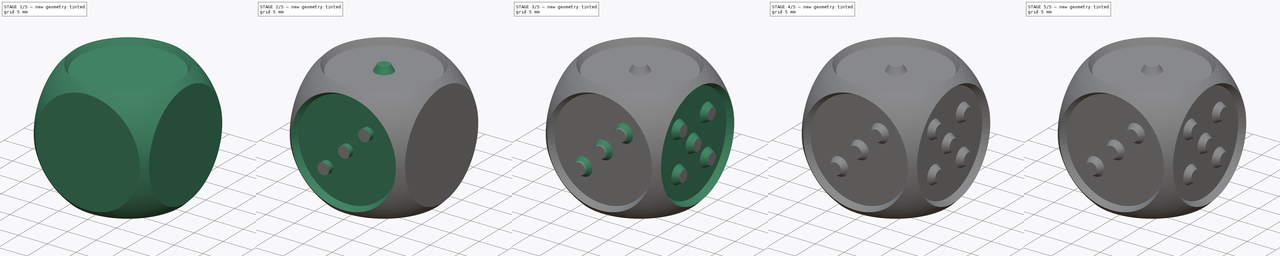
[diagram: build sequence overview — one tinted view per stage of 5, left to right]
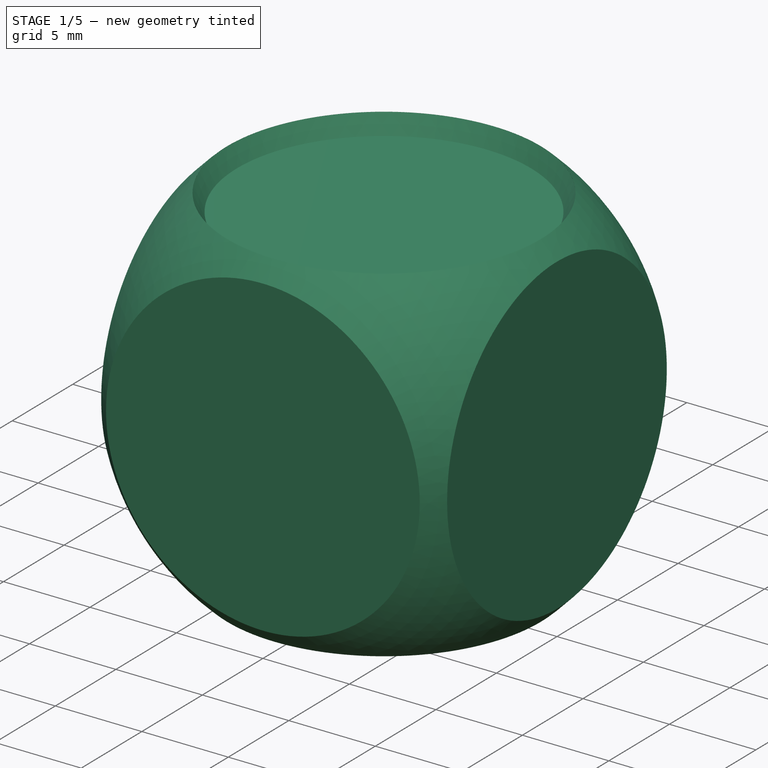
[diagram: stage 1 of 5 — iso view after this stage's code; geometry added in this stage tinted green]
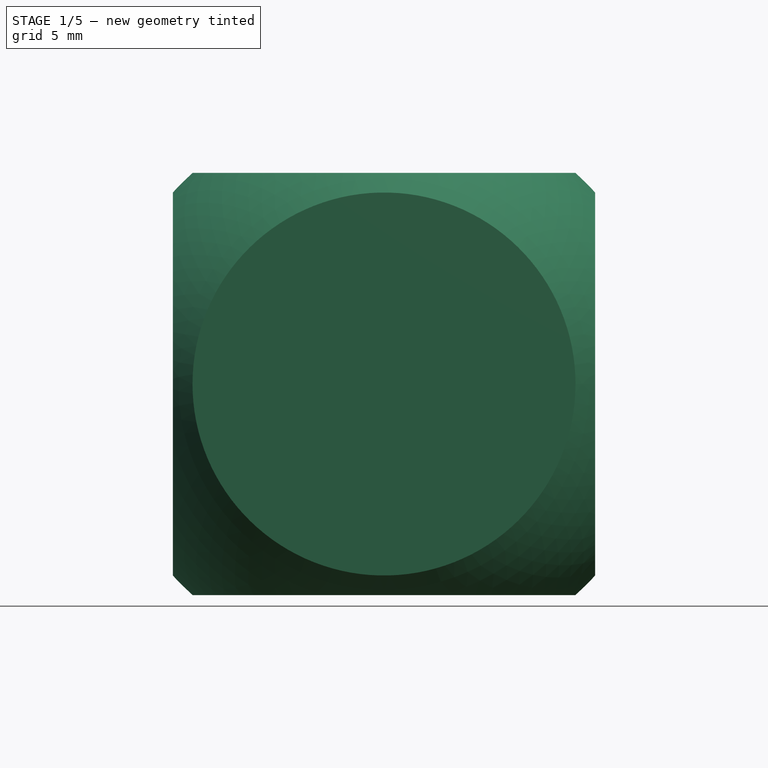
[diagram: stage 1 of 5 — front view after this stage's code; geometry added in this stage tinted green]
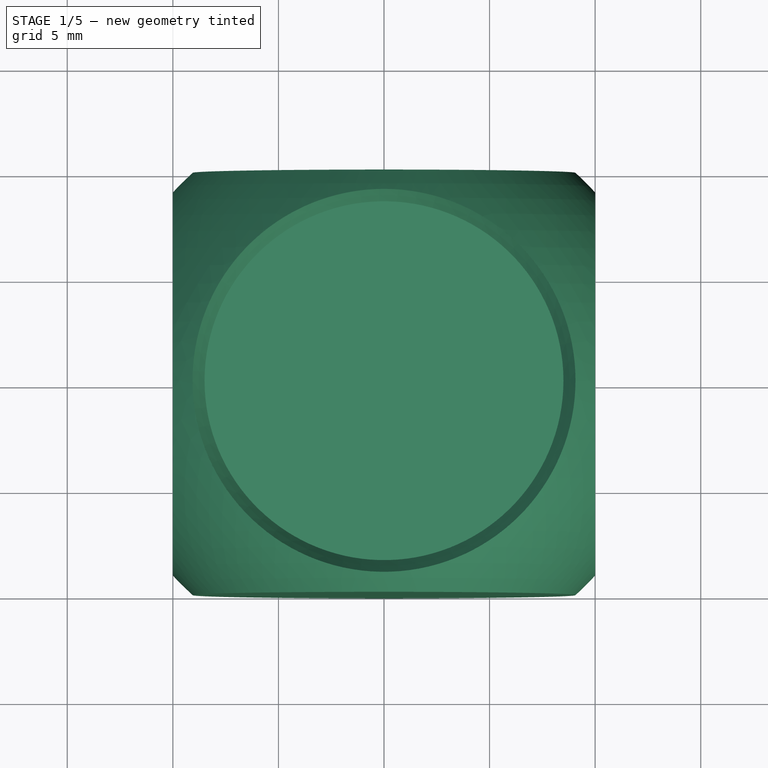
[diagram: stage 1 of 5 — top view after this stage's code; geometry added in this stage tinted green]
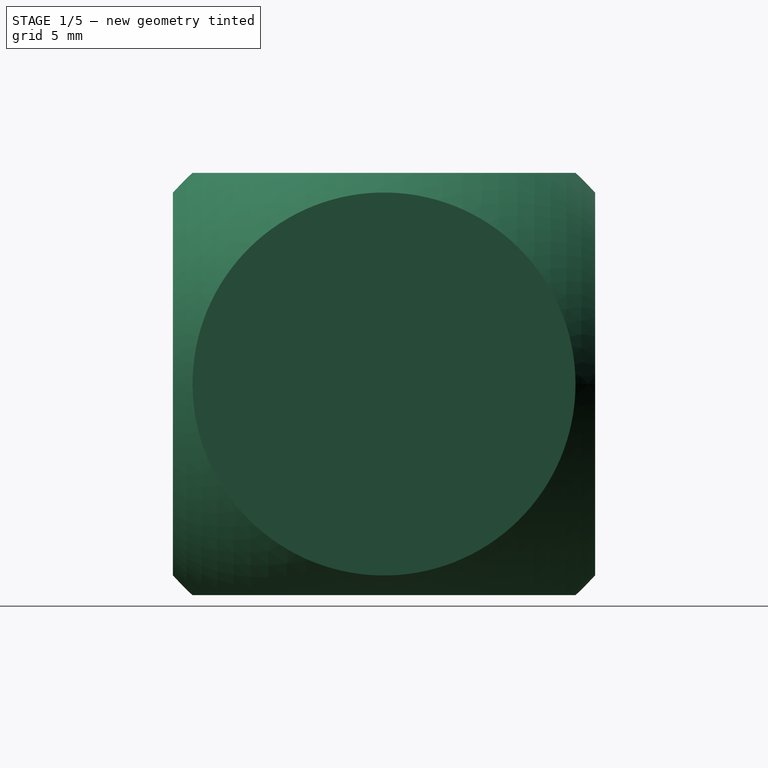
[diagram: stage 1 of 5 — right view after this stage's code; geometry added in this stage tinted green]
FCSTD DOCUMENT  (FreeCAD 0.16R6712 (Git))
Label: dice
License: All rights reserved
LicenseURL: http://en.wikipedia.org/wiki/All_rights_reserved
objects: Part::Chamfer×12, Sketcher::SketchObject×10, Part::Extrusion×8, Part::Cut×6, Part::Revolution×2, Spreadsheet::Sheet×1, Part::MultiCommon×1, Part::MultiFuse×1
note: 40 computed .brp shape members not serialized (recipe doc carries the construction recipe); baked Part::Feature solids carry a one-line shape summary decoded from their .brp

FEATURE [Spreadsheet::Sheet] Spreadsheet  label="data"
  cells = A1=radius_dice; B1(radius_dice)==27 / 2; A2=cube_side; B2(cube_side)=20; A3=slope_numbers; B3(slope_numbers)=30; A4=depth_numbers; B4(depth_numbers)=1.5; A5=radius_numbers; B5(radius_number)=1
FEATURE [Sketcher::SketchObject] Sketch001
  expr: Constraints[13] = data.cube_side
  sketch-geometry (5):
    g0: LineSegment StartX=10 StartY=10 StartZ=0 EndX=-10 EndY=10 EndZ=0
    g1: LineSegment StartX=-10 StartY=10 StartZ=0 EndX=-10 EndY=-10 EndZ=0
    g2: LineSegment StartX=-10 StartY=-10 StartZ=0 EndX=10 EndY=-10 EndZ=0
    g3: LineSegment StartX=10 StartY=-10 StartZ=0 EndX=10 EndY=10 EndZ=0
    g4: Circle [constr] CenterX=0 CenterY=0 CenterZ=0 NormalX=0 NormalY=0 NormalZ=1 Radius=14.1421
  constraints (14):
    c: Coincident(g0,g1)
    c: Coincident(g1,g2)
    c: Coincident(g2,g3)
    c: Coincident(g3,g0)
    c: Equal(g0,g1)
    c: Equal(g0,g2)
    c: Equal(g0,g3)
    c: PointOnObject(g0,g4)
    c: PointOnObject(g1,g4)
    c: PointOnObject(g2,g4)
    c: PointOnObject(g3,g4)
    c: Coincident(g4,g-1)
    c: Horizontal(g0)
    c: DistanceX(g0,g0) = 20
FEATURE [Part::Extrusion] Extrude003
  Base = -> Sketch001
  Dir = (0,0,20)
  Solid = true
FEATURE [Sketcher::SketchObject] Sketch
  expr: Constraints[3] = data.radius_dice
  sketch-geometry (2):
    g0: ArcOfCircle CenterX=0 CenterY=0 CenterZ=0 NormalX=0 NormalY=0 NormalZ=1 Radius=13.5 StartAngle=4.71239 EndAngle=7.85398
    g1: LineSegment StartX=7e-12 StartY=13.5 StartZ=0 EndX=4e-12 EndY=-13.5 EndZ=0
  constraints (6):
    c: Coincident(g0,g-1)
    c: PointOnObject(g0,g-2)
    c: PointOnObject(g0,g-2)
    c: Radius(g0) = 13.5
    c: Coincident(g1,g0)
    c: Coincident(g1,g0)
FEATURE [Part::Revolution] Revolve
  Angle = 360
  Axis = (0,1,0)
  Base = (0,0,0)
  Placement = pos=(0,0,10) rot=(0,0,1;0rad)
  Solid = true
  Source = -> Sketch
FEATURE [Part::MultiCommon] Common
  Shapes = -> [Revolve,Extrude003]
FEATURE [Sketcher::SketchObject] Sketch002
  ExternalGeometry = -> [Common]
  Placement = pos=(0,0,20) rot=(0,0,1;0rad)
  Support = -> Common [Face5]
  sketch-geometry (1):
    g0: Circle CenterX=0 CenterY=0 CenterZ=0 NormalX=0 NormalY=0 NormalZ=1 Radius=9.06918
  constraints (2):
    c: Coincident(g0,g-1)
    c: Tangent(g0,g-3)
FEATURE [Part::Extrusion] Extrude
  Base = -> Sketch002
  Dir = (0,0,-1)
  Solid = true
FEATURE [Part::Cut] Cut
  Base = -> Common
  Tool = -> Extrude
FEATURE [Part::Chamfer] Chamfer
  Base = -> Cut
  Edges = 1 edges: [Edge12 r1=0.99 r2=0.57]
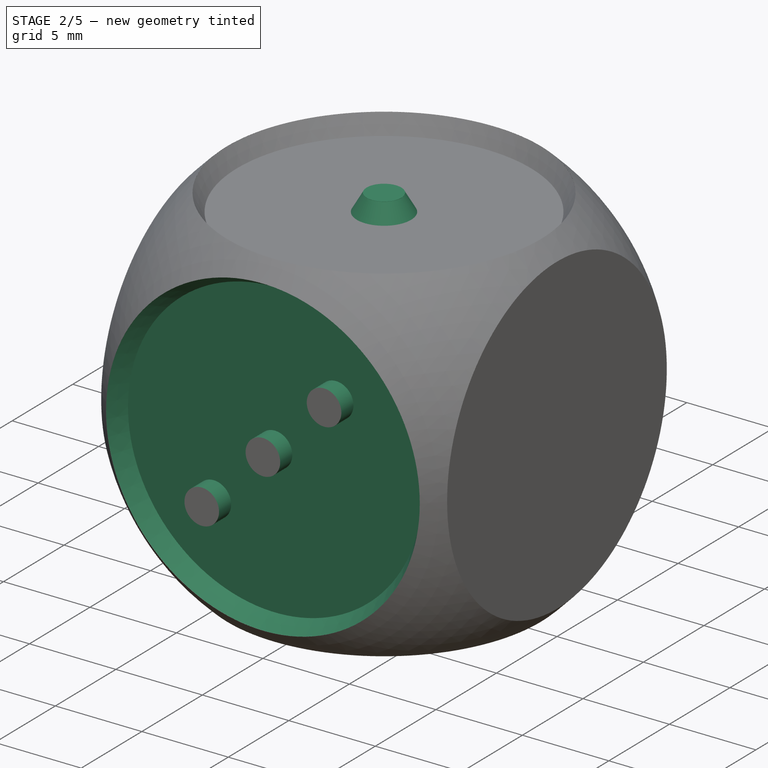
[diagram: stage 2 of 5 — iso view after this stage's code; geometry added in this stage tinted green]
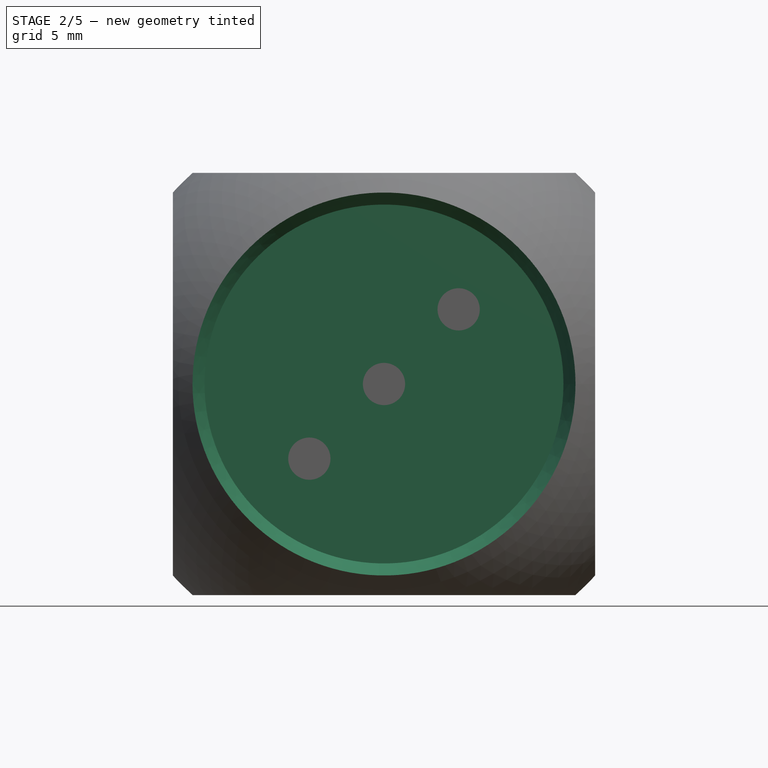
[diagram: stage 2 of 5 — front view after this stage's code; geometry added in this stage tinted green]
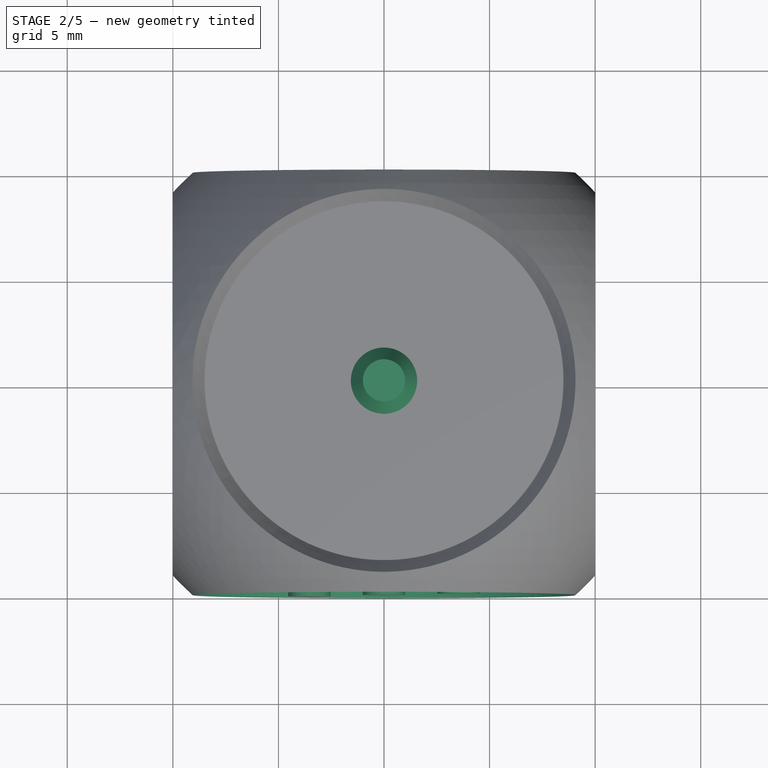
[diagram: stage 2 of 5 — top view after this stage's code; geometry added in this stage tinted green]
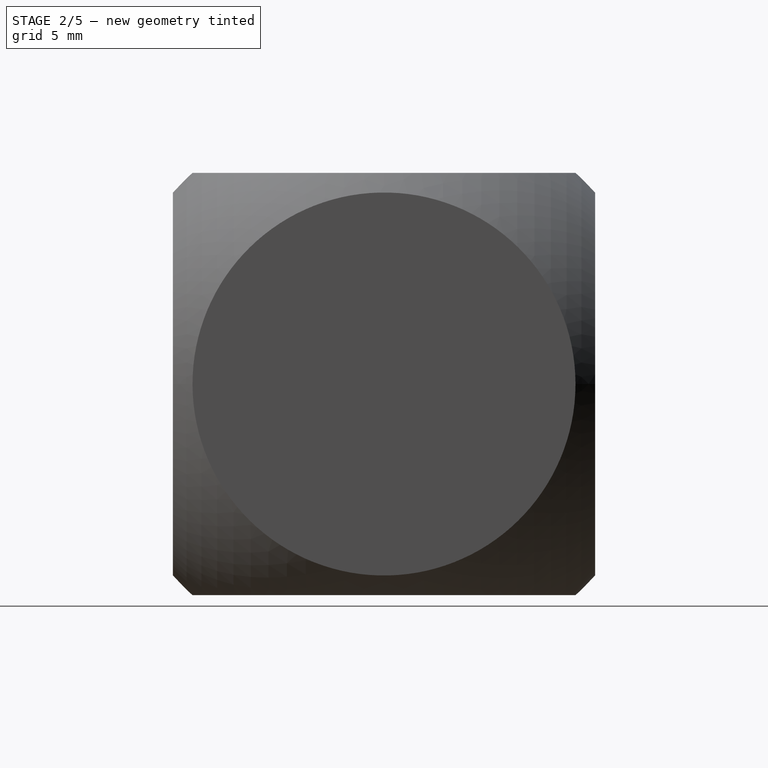
[diagram: stage 2 of 5 — right view after this stage's code; geometry added in this stage tinted green]
FEATURE [Sketcher::SketchObject] Sketch003
  Placement = pos=(0,0,19) rot=(0,0,1;0rad)
  Support = -> Chamfer [Face4]
  sketch-geometry (1):
    g0: Circle CenterX=0 CenterY=0 CenterZ=0 NormalX=0 NormalY=0 NormalZ=1 Radius=1
  constraints (2):
    c: Coincident(g0,g-1)
    c: Radius(g0) = 1
FEATURE [Part::Extrusion] Extrude004
  Base = -> Sketch003
  Dir = (0,0,1)
  Solid = true
FEATURE [Part::MultiFuse] Fusion
  Shapes = -> [Chamfer,Extrude004]
FEATURE [Part::Chamfer] Chamfer001
  Base = -> Fusion
  Edges = 1 edges: [Edge2 r1=0.99 r2=0.57]
FEATURE [Sketcher::SketchObject] Sketch004
  ExternalGeometry = -> [Chamfer001]
  Placement = pos=(0,-10,0) rot=(1,0,0;1.5708rad)
  Support = -> Chamfer001 [Face10]
  sketch-geometry (7):
    g0: Circle CenterX=0 CenterY=10 CenterZ=0 NormalX=0 NormalY=0 NormalZ=1 Radius=1
    g1: LineSegment [constr] StartX=0 StartY=10 StartZ=0 EndX=3.53553 EndY=13.5355 EndZ=0
    g2: LineSegment [constr] StartX=0 StartY=10 StartZ=0 EndX=5.44929 EndY=10 EndZ=0
    g3: LineSegment [constr] StartX=0 StartY=10 StartZ=0 EndX=-3.53553 EndY=6.46447 EndZ=0
    g4: Circle CenterX=3.53553 CenterY=13.5355 CenterZ=0 NormalX=0 NormalY=0 NormalZ=1 Radius=1
    g5: Circle CenterX=-3.53553 CenterY=6.46447 CenterZ=0 NormalX=0 NormalY=0 NormalZ=1 Radius=1
    g6: Circle CenterX=0 CenterY=10 CenterZ=0 NormalX=0 NormalY=0 NormalZ=1 Radius=9.06918
  constraints (17):
    c: PointOnObject(g0,g-2)
    c: Radius(g0) = 1
    c: Coincident(g0,g-3)
    c: Horizontal(g2)
    c: Coincident(g0,g1)
    c: Coincident(g0,g2)
    c: Angle(g2,g1) = 0.785398
    c: Coincident(g3,g0)
    c: Parallel(g3,g1)
    c: Radius(g5) = 1
    c: Radius(g4) = 1
    c: Coincident(g3,g5)
    c: Coincident(g1,g4)
    c: Distance(g3) = 5
    c: Distance(g1) = 5
    c: Coincident(g6,g0)
    c: Equal(g6,g-3)
FEATURE [Part::Extrusion] Extrude005
  Base = -> Sketch004
  Dir = (0,1,0)
  Solid = true
FEATURE [Part::Cut] Cut001
  Base = -> Chamfer001
  Tool = -> Extrude005
FEATURE [Part::Chamfer] Chamfer002
  Base = -> Cut001
  Edges = 1 edges: [Edge21 r1=0.99 r2=0.57]
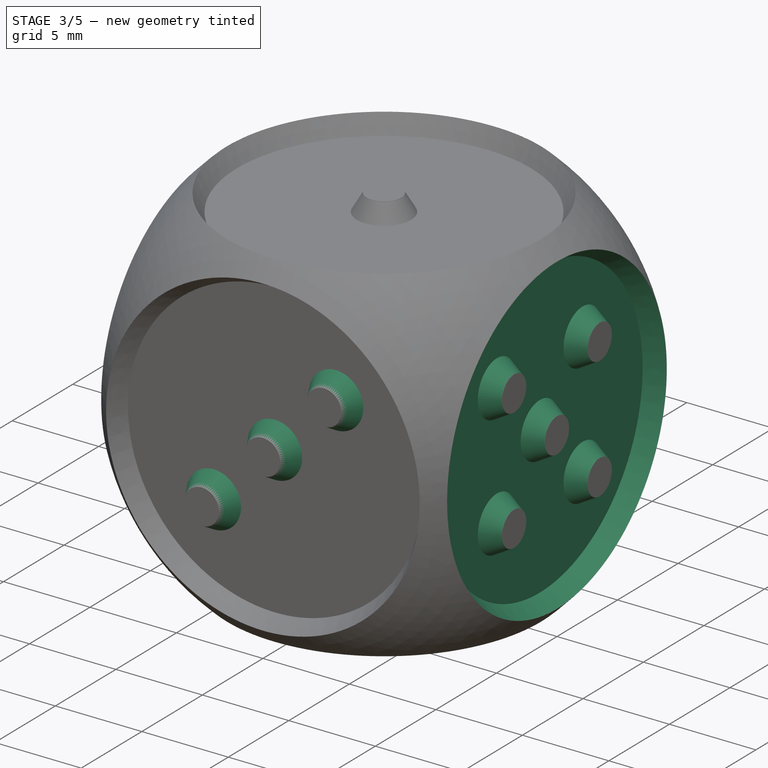
[diagram: stage 3 of 5 — iso view after this stage's code; geometry added in this stage tinted green]
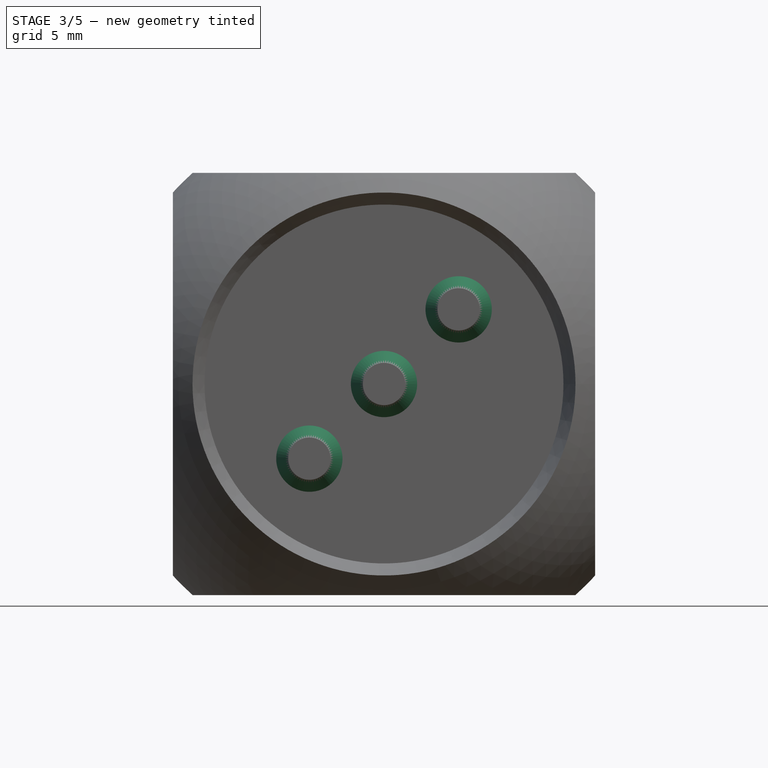
[diagram: stage 3 of 5 — front view after this stage's code; geometry added in this stage tinted green]
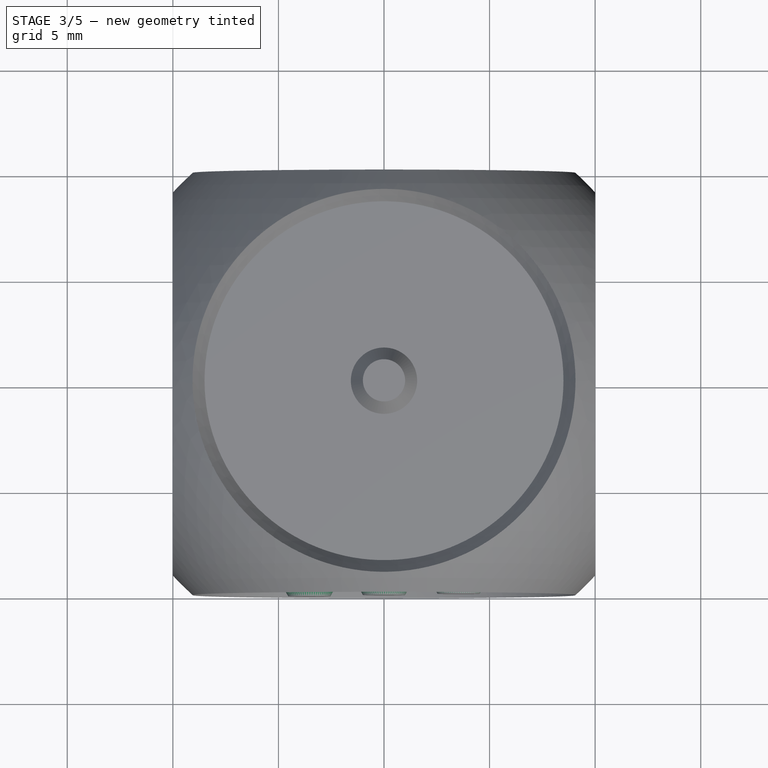
[diagram: stage 3 of 5 — top view after this stage's code; geometry added in this stage tinted green]
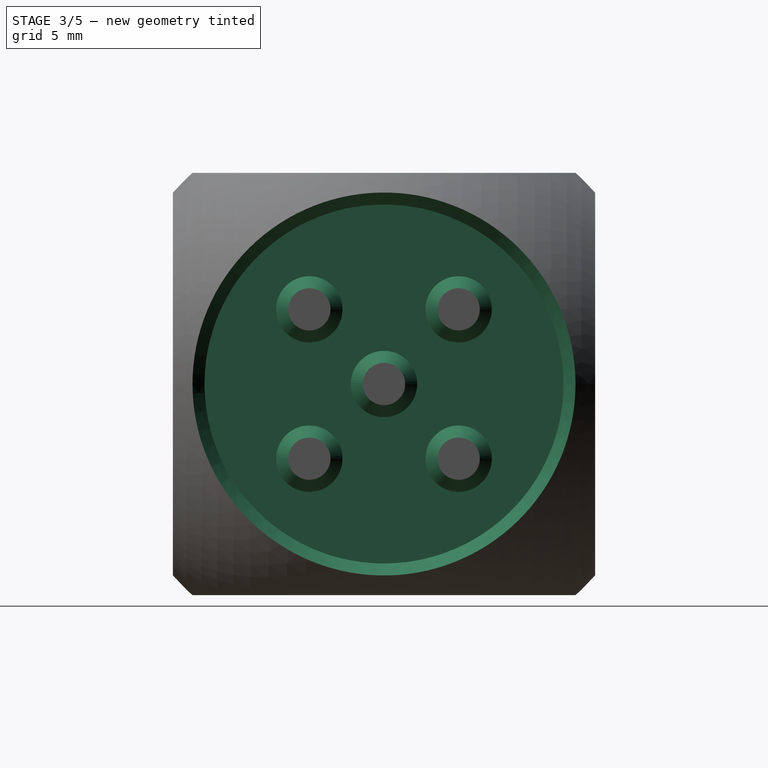
[diagram: stage 3 of 5 — right view after this stage's code; geometry added in this stage tinted green]
FEATURE [Part::Chamfer] Chamfer003
  Base = -> Chamfer002
  Edges = 3 edges: [Edge15 r1=0.57 r2=0.99,Edge16 r1=0.57 r2=0.99,Edge17 r1=0.57 r2=0.99]
FEATURE [Sketcher::SketchObject] Sketch005
  ExternalGeometry = -> [Chamfer003]
  Placement = pos=(10,0,0) rot=(0.57735,0.57735,0.57735;2.0944rad)
  Support = -> Chamfer003 [Face14]
  sketch-geometry (11):
    g0: Circle CenterX=0 CenterY=10 CenterZ=0 NormalX=0 NormalY=0 NormalZ=1 Radius=9.06918
    g1: Circle CenterX=0 CenterY=10 CenterZ=0 NormalX=0 NormalY=0 NormalZ=1 Radius=1
    g2: LineSegment [constr] StartX=0 StartY=10 StartZ=0 EndX=2.91237 EndY=10 EndZ=0
    g3: LineSegment [constr] StartX=0 StartY=10 StartZ=0 EndX=3.53553 EndY=13.5355 EndZ=0
    g4: LineSegment [constr] StartX=0 StartY=10 StartZ=0 EndX=-3.53553 EndY=6.46447 EndZ=0
    g5: LineSegment [constr] StartX=0 StartY=10 StartZ=0 EndX=-3.53553 EndY=13.5355 EndZ=0
    g6: LineSegment [constr] StartX=0 StartY=10 StartZ=0 EndX=3.53553 EndY=6.46447 EndZ=0
    g7: Circle CenterX=-3.53553 CenterY=6.46447 CenterZ=0 NormalX=0 NormalY=0 NormalZ=1 Radius=1
    g8: Circle CenterX=-3.53553 CenterY=13.5355 CenterZ=0 NormalX=0 NormalY=0 NormalZ=1 Radius=1
    g9: Circle CenterX=3.53553 CenterY=13.5355 CenterZ=0 NormalX=0 NormalY=0 NormalZ=1 Radius=1
    g10: Circle CenterX=3.53553 CenterY=6.46447 CenterZ=0 NormalX=0 NormalY=0 NormalZ=1 Radius=1
  constraints (26):
    c: Coincident(g0,g-3)
    c: Tangent(g-3,g0) = -1.5708
    c: Radius(g1) = 1
    c: Coincident(g0,g1)
    c: Horizontal(g2)
    c: Coincident(g0,g2)
    c: Coincident(g0,g3)
    c: Coincident(g0,g5)
    c: Coincident(g0,g4)
    c: Coincident(g0,g6)
    c: Angle(g2,g3) = 0.785398
    c: Angle(g2,g5) = 2.35619
    c: Angle(g6,g2) = 0.785398
    c: Angle(g4,g2) = 2.35619
    c: Distance(g5) = 5
    c: Distance(g3) = 5
    c: Distance(g4) = 5
    c: Distance(g6) = 5
    c: Radius(g10) = 1
    c: Equal(g10,g9)
    c: Equal(g10,g8)
    c: Equal(g10,g7)
    c: Coincident(g5,g8)
    c: Coincident(g3,g9)
    c: Coincident(g6,g10)
    c: Coincident(g4,g7)
FEATURE [Part::Extrusion] Extrude006
  Base = -> Sketch005
  Dir = (-1,0,0)
  Solid = true
FEATURE [Part::Cut] Cut002
  Base = -> Chamfer003
  Tool = -> Extrude006
FEATURE [Part::Chamfer] Chamfer004
  Base = -> Cut002
  Edges = 1 edges: [Edge31 r1=0.99 r2=0.57]
FEATURE [Part::Chamfer] Chamfer005
  Base = -> Chamfer004
  Edges = 5 edges: [Edge15 r1=0.57 r2=0.99,Edge16 r1=0.57 r2=0.99,Edge17 r1=0.57 r2=0.99,Edge18 r1=0.57 r2=0.99,Edge19 r1=0.57 r2=0.99]
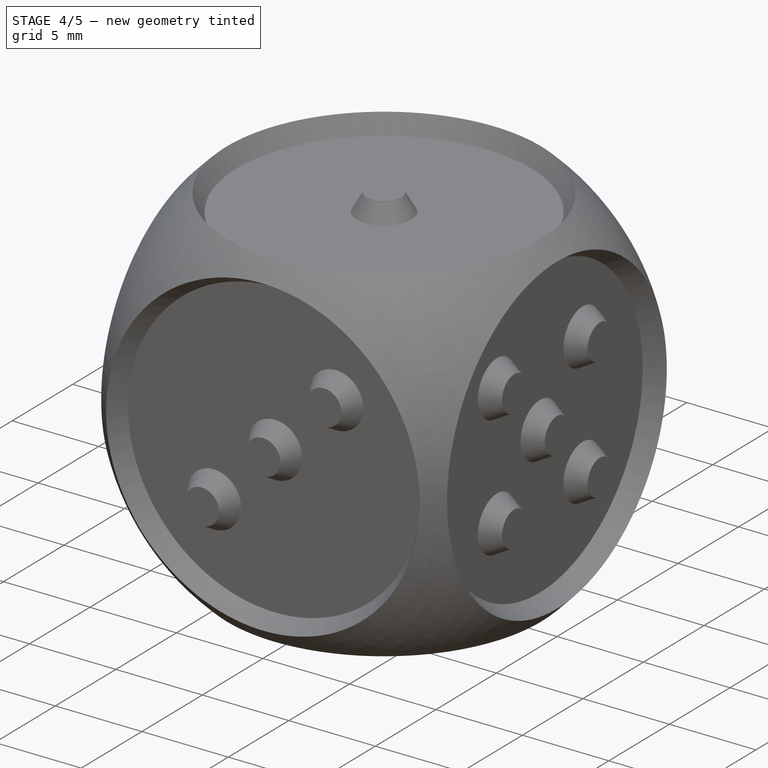
[diagram: stage 4 of 5 — iso view after this stage's code; geometry added in this stage tinted green]
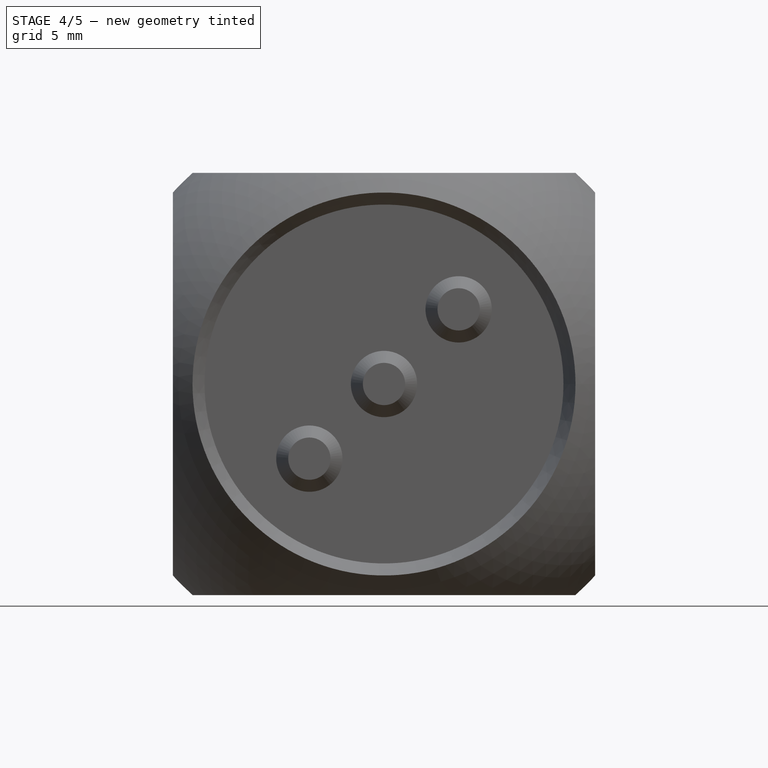
[diagram: stage 4 of 5 — front view after this stage's code; geometry added in this stage tinted green]
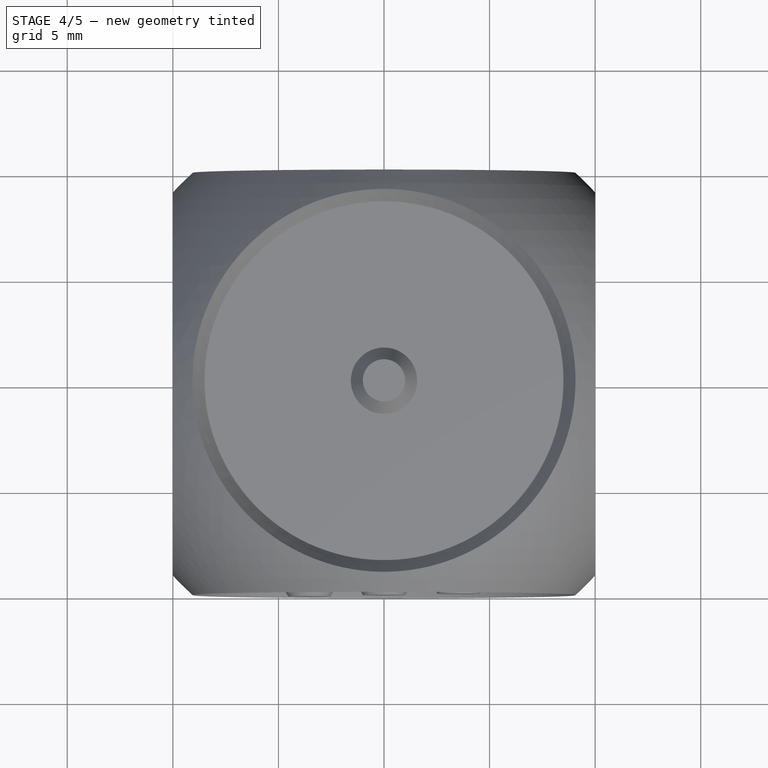
[diagram: stage 4 of 5 — top view after this stage's code; geometry added in this stage tinted green]
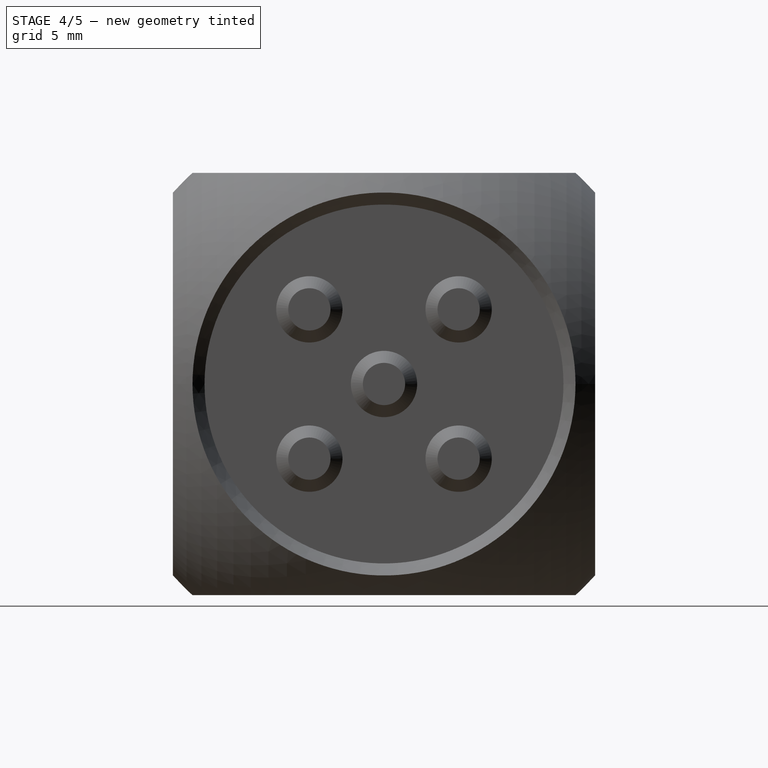
[diagram: stage 4 of 5 — right view after this stage's code; geometry added in this stage tinted green]
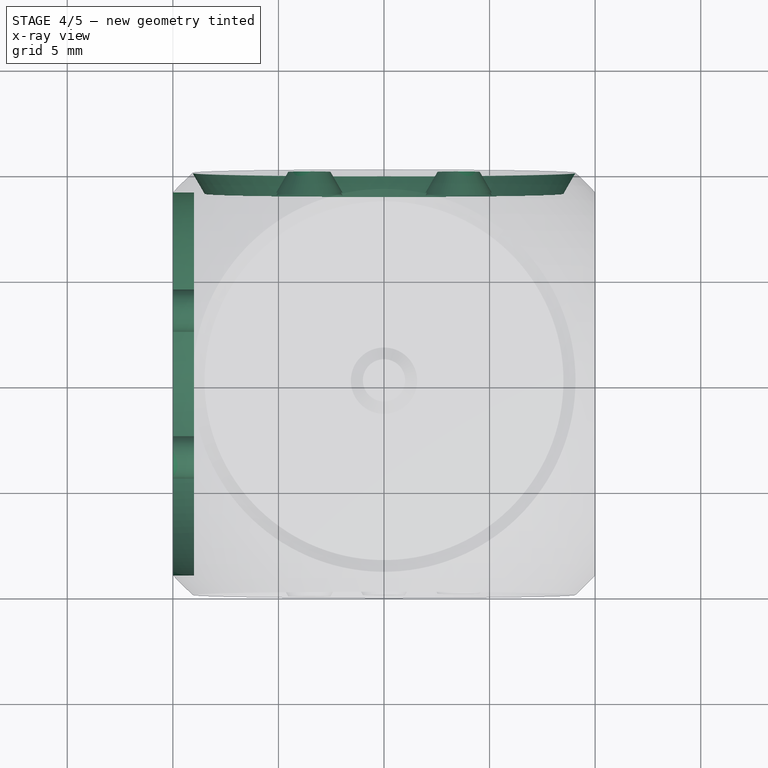
[diagram: stage 4 of 5 — x-ray composite at the top view; earlier geometry ghosted, this stage's added geometry solid]
FEATURE [Sketcher::SketchObject] Sketch006
  ExternalGeometry = -> [Chamfer005]
  Placement = pos=(0,10,0) rot=(0,0.707107,0.707107;3.14159rad)
  Support = -> Chamfer005 [Face20]
  sketch-geometry (10):
    g0: Circle CenterX=0 CenterY=10 CenterZ=0 NormalX=0 NormalY=0 NormalZ=1 Radius=9.06918
    g1: LineSegment [constr] StartX=0 StartY=10 StartZ=0 EndX=3.53553 EndY=13.5355 EndZ=0
    g2: LineSegment [constr] StartX=0 StartY=10 StartZ=0 EndX=4.89545 EndY=10 EndZ=0
    g3: LineSegment [constr] StartX=0 StartY=10 StartZ=0 EndX=-3.53553 EndY=13.5355 EndZ=0
    g4: LineSegment [constr] StartX=0 StartY=10 StartZ=0 EndX=-3.53553 EndY=6.46447 EndZ=0
    g5: LineSegment [constr] StartX=0 StartY=10 StartZ=0 EndX=3.53553 EndY=6.46447 EndZ=0
    g6: Circle CenterX=-3.53553 CenterY=13.5355 CenterZ=0 NormalX=0 NormalY=0 NormalZ=1 Radius=1
    g7: Circle CenterX=3.53553 CenterY=13.5355 CenterZ=0 NormalX=0 NormalY=0 NormalZ=1 Radius=1
    g8: Circle CenterX=3.53553 CenterY=6.46447 CenterZ=0 NormalX=0 NormalY=0 NormalZ=1 Radius=1
    g9: Circle CenterX=-3.53553 CenterY=6.46447 CenterZ=0 NormalX=0 NormalY=0 NormalZ=1 Radius=1
  constraints (24):
    c: Coincident(g0,g-3)
    c: Equal(g0,g-3)
    c: Horizontal(g2)
    c: Coincident(g0,g1)
    c: Coincident(g0,g2)
    c: Coincident(g0,g3)
    c: Coincident(g0,g4)
    c: Coincident(g0,g5)
    c: Angle(g2,g1) = 0.785398
    c: Angle(g2,g3) = 2.35619
    c: Angle(g5,g2) = 0.785398
    c: Angle(g4,g2) = 2.35619
    c: Distance(g3) = 5
    c: Distance(g1) = 5
    c: Distance(g5) = 5
    c: Distance(g4) = 5
    c: Radius(g6) = 1
    c: Equal(g6,g7)
    c: Equal(g6,g8)
    c: Equal(g6,g9)
    c: Coincident(g3,g6)
    c: Coincident(g1,g7)
    c: Coincident(g5,g8)
    c: Coincident(g4,g9)
FEATURE [Part::Extrusion] Extrude007
  Base = -> Sketch006
  Dir = (0,-1,0)
  Solid = true
FEATURE [Part::Cut] Cut003
  Base = -> Chamfer005
  Tool = -> Extrude007
FEATURE [Part::Chamfer] Chamfer006
  Base = -> Cut003
  Edges = 1 edges: [Edge44 r1=0.99 r2=0.57]
FEATURE [Part::Chamfer] Chamfer007
  Base = -> Chamfer006
  Edges = 4 edges: [Edge16 r1=0.57 r2=0.99,Edge17 r1=0.57 r2=0.99,Edge18 r1=0.57 r2=0.99,Edge19 r1=0.57 r2=0.99]
FEATURE [Sketcher::SketchObject] Sketch007
  ExternalGeometry = -> [Chamfer007]
  Placement = pos=(-10,0,0) rot=(0.57735,-0.57735,-0.57735;2.0944rad)
  Support = -> Chamfer007 [Face20]
  sketch-geometry (6):
    g0: Circle CenterX=0 CenterY=10 CenterZ=0 NormalX=0 NormalY=0 NormalZ=1 Radius=9.06918
    g1: LineSegment [constr] StartX=0 StartY=10 StartZ=0 EndX=4.0038 EndY=10 EndZ=0
    g2: LineSegment [constr] StartX=0 StartY=10 StartZ=0 EndX=3.53553 EndY=13.5355 EndZ=0
    g3: LineSegment [constr] StartX=0 StartY=10 StartZ=0 EndX=-3.53553 EndY=6.46447 EndZ=0
    g4: Circle CenterX=3.53553 CenterY=13.5355 CenterZ=0 NormalX=0 NormalY=0 NormalZ=1 Radius=1
    g5: Circle CenterX=-3.53553 CenterY=6.46447 CenterZ=0 NormalX=0 NormalY=0 NormalZ=1 Radius=1
  constraints (14):
    c: Coincident(g0,g-3)
    c: Equal(g0,g-3)
    c: Horizontal(g1)
    c: Coincident(g0,g1)
    c: Coincident(g0,g2)
    c: Coincident(g0,g3)
    c: Angle(g1,g2) = 0.785398
    c: Angle(g3,g1) = 2.35619
    c: Distance(g2) = 5
    c: Distance(g3) = 5
    c: Coincident(g4,g2)
    c: Coincident(g3,g5)
    c: Radius(g4) = 1
    c: Equal(g4,g5)
FEATURE [Part::Extrusion] Extrude008
  Base = -> Sketch007
  Dir = (1,0,0)
  Solid = true
FEATURE [Part::Cut] Cut004
  Base = -> Chamfer007
  Tool = -> Extrude008
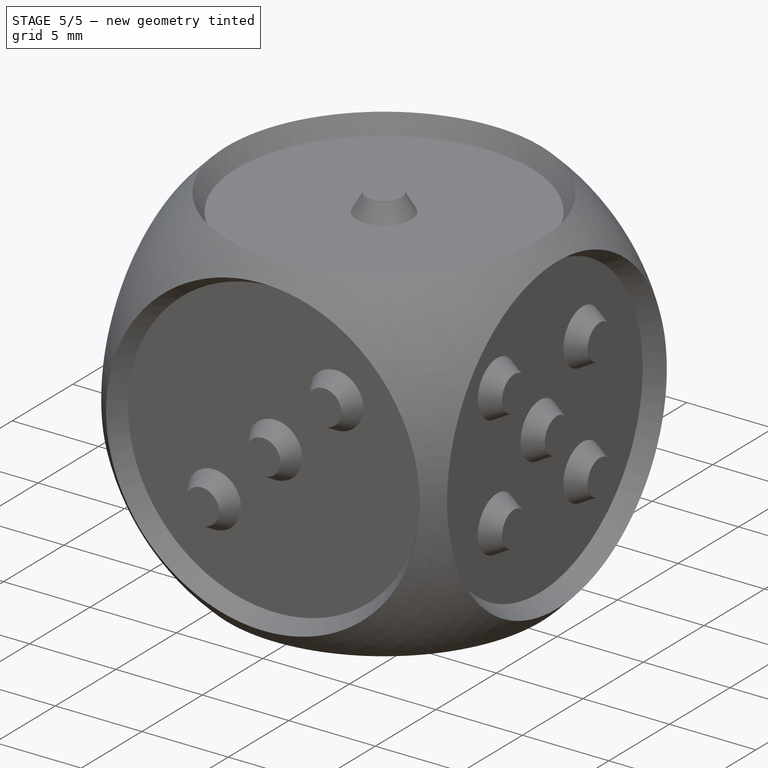
[diagram: stage 5 of 5 — iso view after this stage's code; geometry added in this stage tinted green]
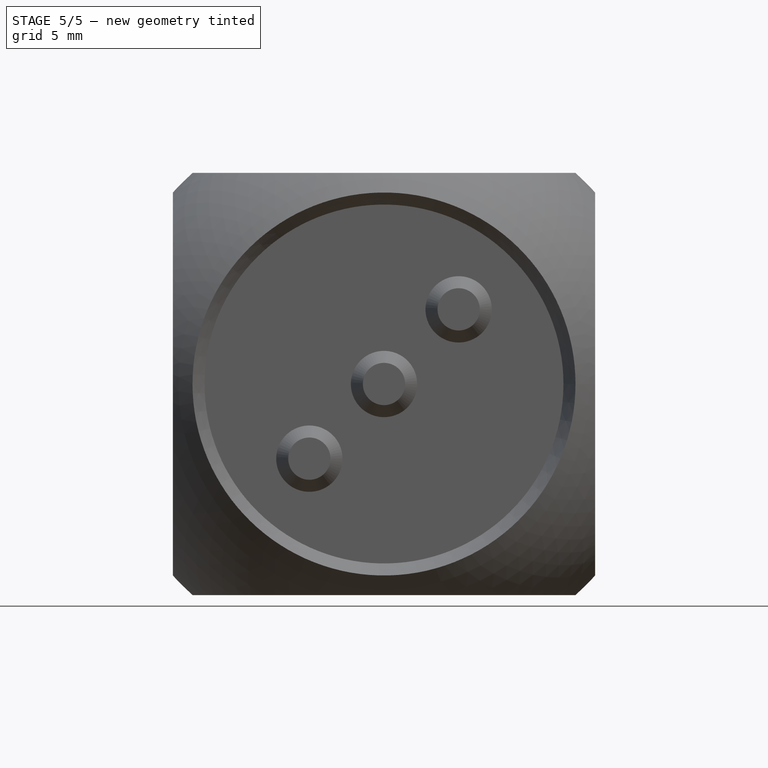
[diagram: stage 5 of 5 — front view after this stage's code; geometry added in this stage tinted green]
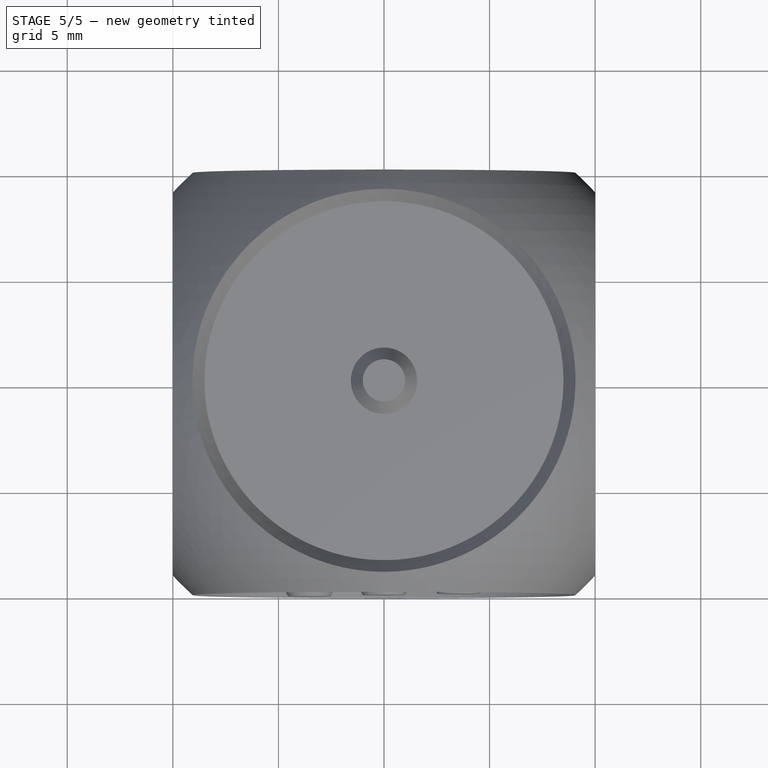
[diagram: stage 5 of 5 — top view after this stage's code; geometry added in this stage tinted green]
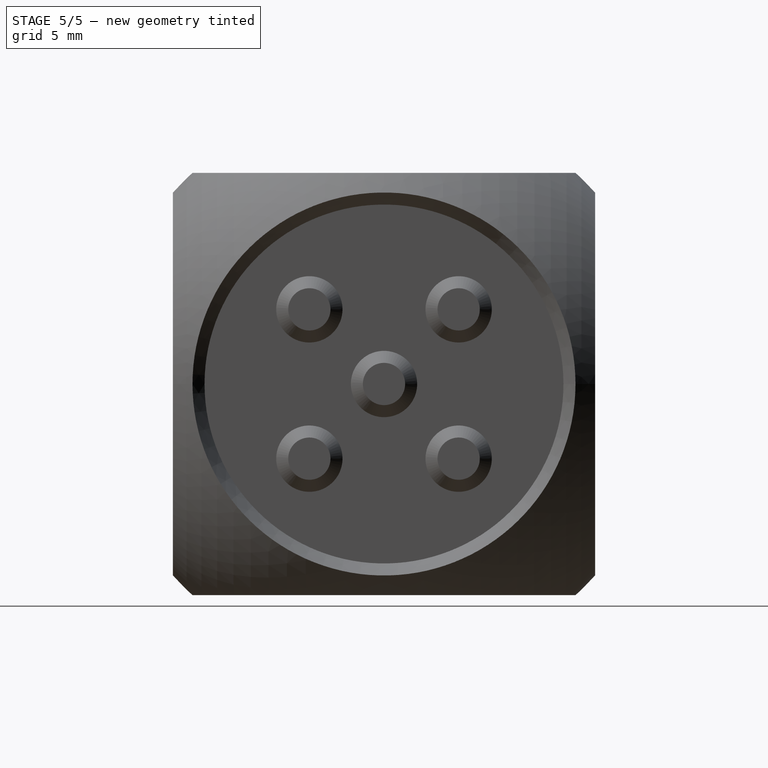
[diagram: stage 5 of 5 — right view after this stage's code; geometry added in this stage tinted green]
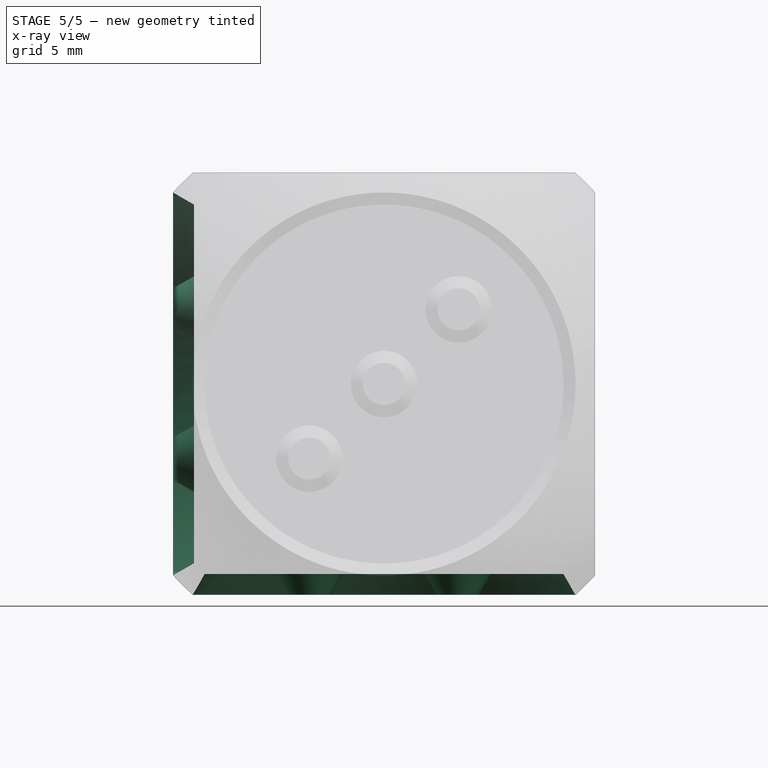
[diagram: stage 5 of 5 — x-ray composite at the front view; earlier geometry ghosted, this stage's added geometry solid]
FEATURE [Part::Chamfer] Chamfer008
  Base = -> Cut004
  Edges = 1 edges: [Edge42 r1=0.99 r2=0.57]
FEATURE [Part::Chamfer] Chamfer009
  Base = -> Chamfer008
  Edges = 2 edges: [Edge17 r1=0.57 r2=0.99,Edge18 r1=0.57 r2=0.99]
FEATURE [Sketcher::SketchObject] Sketch008
  ExternalGeometry = -> [Chamfer009]
  Placement = pos=(0,0,0) rot=(1,0,0;3.14159rad)
  Support = -> Chamfer009 [Face15]
  sketch-geometry (17):
    g0: LineSegment [constr] StartX=0 StartY=0 StartZ=0 EndX=3.5 EndY=0 EndZ=0
    g1: LineSegment [constr] StartX=0 StartY=0 StartZ=0 EndX=3.5 EndY=5 EndZ=0
    g2: LineSegment [constr] StartX=0 StartY=0 StartZ=0 EndX=-3.5 EndY=-5 EndZ=0
    g3: LineSegment [constr] StartX=0 StartY=0 StartZ=0 EndX=-3.5 EndY=5 EndZ=0
    g4: LineSegment [constr] StartX=0 StartY=0 StartZ=0 EndX=3.5 EndY=-5 EndZ=0
    g5: Circle CenterX=0 CenterY=0 CenterZ=0 NormalX=0 NormalY=0 NormalZ=1 Radius=9.06918
    g6: LineSegment [constr] StartX=7.9e-11 StartY=0 StartZ=0 EndX=-3.5 EndY=0 EndZ=0
    g7: LineSegment [constr] StartX=-3.5 StartY=-5 StartZ=0 EndX=3.5 EndY=-5 EndZ=0
    g8: LineSegment [constr] StartX=-3.5 StartY=5 StartZ=0 EndX=3.5 EndY=5 EndZ=0
    g9: LineSegment [constr] StartX=-3.5 StartY=0 StartZ=0 EndX=-3.5 EndY=-5 EndZ=0
    g10: LineSegment [constr] StartX=-3.5 StartY=5 StartZ=0 EndX=-3.5 EndY=0 EndZ=0
    g11: Circle CenterX=-3.5 CenterY=5 CenterZ=0 NormalX=0 NormalY=0 NormalZ=1 Radius=1
    g12: Circle CenterX=-3.5 CenterY=-5 CenterZ=0 NormalX=0 NormalY=0 NormalZ=1 Radius=1
    g13: Circle CenterX=3.5 CenterY=-5 CenterZ=0 NormalX=0 NormalY=0 NormalZ=1 Radius=1
    g14: Circle CenterX=3.5 CenterY=5 CenterZ=0 NormalX=0 NormalY=0 NormalZ=1 Radius=1
    g15: Circle CenterX=-3.5 CenterY=0 CenterZ=0 NormalX=0 NormalY=0 NormalZ=1 Radius=1
    g16: Circle CenterX=3.5 CenterY=0 CenterZ=0 NormalX=0 NormalY=0 NormalZ=1 Radius=1
  constraints (42):
    c: Horizontal(g0)
    c: Coincident(g0,g1)
    c: Coincident(g0,g2)
    c: Coincident(g0,g3)
    c: Coincident(g0,g4)
    c: Coincident(g0,g-1)
    c: PointOnObject(g5,g0)
    c: PointOnObject(g5,g2)
    c: Equal(g5,g-3)
    c: Horizontal(g6)
    c: PointOnObject(g6,g3)
    c: PointOnObject(g6,g0)
    c: Horizontal(g7)
    c: Coincident(g4,g7)
    c: Coincident(g2,g7)
    c: Horizontal(g8)
    c: Coincident(g1,g8)
    c: Coincident(g3,g8)
    c: Distance(g8) = 7
    c: Distance(g7) = 7
    c: Distance(g0) = 3.5
    c: Distance(g6) = 3.5
    c: Vertical(g9)
    c: Coincident(g6,g9)
    c: Coincident(g2,g9)
    c: Distance(g9) = 5
    c: Vertical(g10)
    c: Coincident(g3,g10)
    c: Coincident(g6,g10)
    c: Distance(g10) = 5
    c: Radius(g11) = 1
    c: Equal(g11,g12)
    c: Equal(g11,g13)
    c: Equal(g11,g14)
    c: Coincident(g3,g11)
    c: Coincident(g1,g14)
    c: Coincident(g4,g13)
    c: Coincident(g2,g12)
    c: Equal(g16,g15)
    c: Equal(g15,g11)
    c: Coincident(g6,g15)
    c: Coincident(g0,g16)
FEATURE [Part::Extrusion] Extrude009
  Base = -> Sketch008
  Dir = (0,0,1)
  Solid = true
FEATURE [Part::Cut] Cut005
  Base = -> Chamfer009
  Tool = -> Extrude009
FEATURE [Part::Chamfer] Chamfer010
  Base = -> Cut005
  Edges = 1 edges: [Edge37 r1=0.99 r2=0.57]
FEATURE [Part::Chamfer] Chamfer011
  Base = -> Chamfer010
  Edges = 6 edges: [Edge18 r1=0.57 r2=0.99,Edge19 r1=0.57 r2=0.99,Edge20 r1=0.57 r2=0.99,Edge21 r1=0.57 r2=0.99,Edge22 r1=0.57 r2=0.99,Edge23 r1=0.57 r2=0.99]
FEATURE [Sketcher::SketchObject] Sketch009
  Placement = pos=(0,0,0) rot=(0.57735,0.57735,0.57735;2.0944rad)
  sketch-geometry (12):
    g0: LineSegment StartX=3.82735 StartY=20 StartZ=0 EndX=2.67265 EndY=20 EndZ=0
    g1: LineSegment StartX=0 StartY=0 StartZ=0 EndX=0 EndY=20 EndZ=0
    g2: LineSegment [constr] StartX=3.25 StartY=20 StartZ=0 EndX=3.25 EndY=19 EndZ=0
    g3: LineSegment StartX=3.25 StartY=19 StartZ=0 EndX=3.82735 EndY=20 EndZ=0
    g4: LineSegment StartX=3.25 StartY=19 StartZ=0 EndX=2.67265 EndY=20 EndZ=0
    g5: LineSegment [constr] StartX=0 StartY=20 StartZ=0 EndX=9.64774 EndY=20 EndZ=0
    g6: LineSegment StartX=0 StartY=20 StartZ=0 EndX=0 EndY=17.4006 EndZ=0
    g7: LineSegment [constr] StartX=4.75 StartY=20.8113 StartZ=0 EndX=4.75 EndY=18.0736 EndZ=0
    g8: LineSegment StartX=6.82735 StartY=20 StartZ=0 EndX=5.67265 EndY=20 EndZ=0
    g9: LineSegment [constr] StartX=6.25 StartY=20 StartZ=0 EndX=6.25 EndY=19 EndZ=0
    g10: LineSegment StartX=6.25 StartY=19 StartZ=0 EndX=6.82735 EndY=20 EndZ=0
    g11: LineSegment StartX=6.25 StartY=19 StartZ=0 EndX=5.67265 EndY=20 EndZ=0
  constraints (33):
    c: Horizontal(g0)
    c: Vertical(g1)
    c: Coincident(g1,g-1)
    c: Vertical(g2)
    c: PointOnObject(g2,g0)
    c: Distance(g2) = 1
    c: Coincident(g2,g3)
    c: Coincident(g2,g4)
    c: Angle(g3,g2) = 0.523599
    c: Angle(g2,g4) = 0.523599
    c: Coincident(g0,g3)
    c: Coincident(g0,g4)
    c: Horizontal(g5)
    c: Coincident(g1,g5)
    c: Vertical(g6)
    c: Coincident(g1,g6)
    c: Distance(g2,g6) = 3.25
    c: PointOnObject(g2,g5)
    c: DistanceY(g-1,g5) = 20
    c: Vertical(g7)
    c: Horizontal(g8)
    c: Vertical(g9)
    c: PointOnObject(g9,g8)
    c: Distance(g9) = 1
    c: Coincident(g9,g10)
    c: Coincident(g9,g11)
    c: Angle(g10,g9) = 0.523599
    c: Angle(g9,g11) = 0.523599
    c: Coincident(g8,g10)
    c: Coincident(g8,g11)
    c: PointOnObject(g9,g5)
    c: Distance(g9,g7) = 1.5
    c: Distance(g2,g7) = 1.5
FEATURE [Part::Revolution] Revolve001
  Angle = 360
  Axis = (0,0,1)
  Base = (0,0,0)
  Solid = true
  Source = -> Sketch009
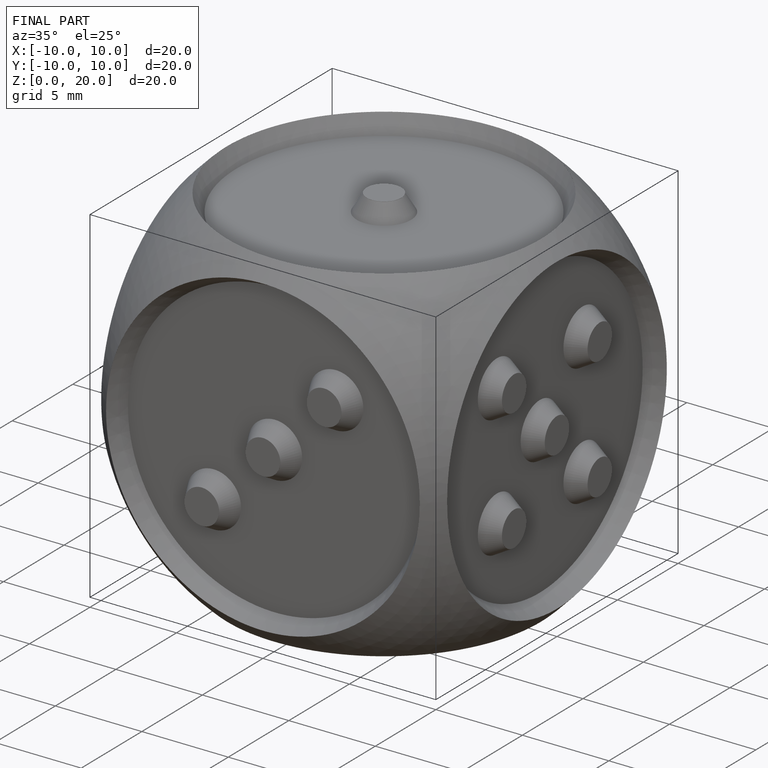
[diagram: finished part — iso view with bounding-box wireframe]
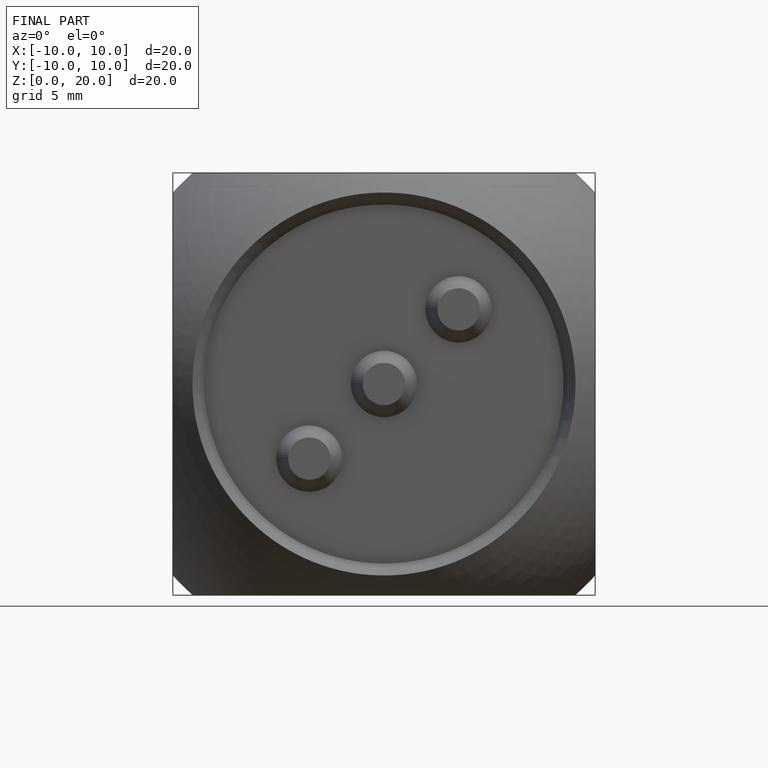
[diagram: finished part — front view with bounding-box wireframe]
